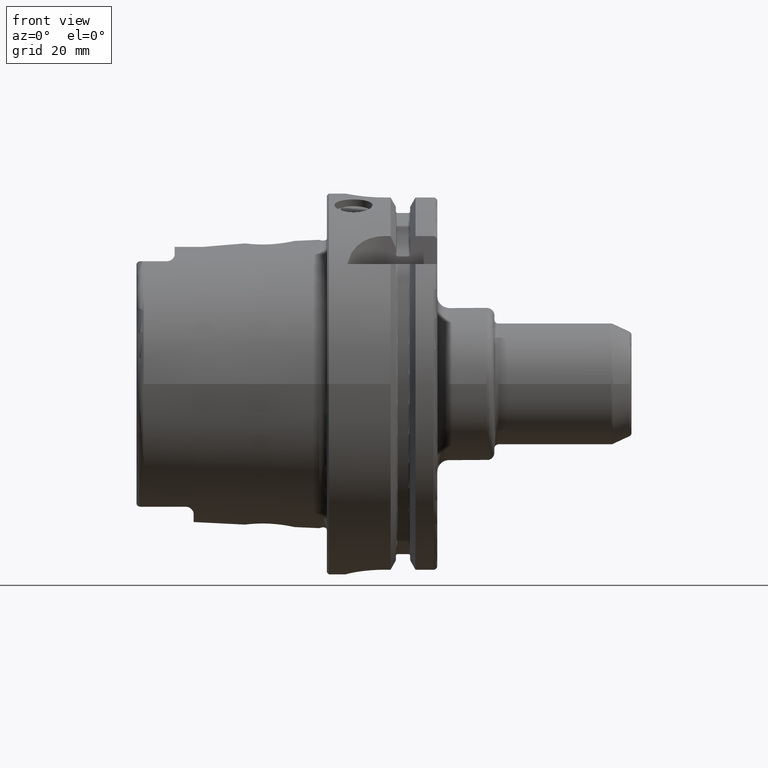
[diagram: clean part render]
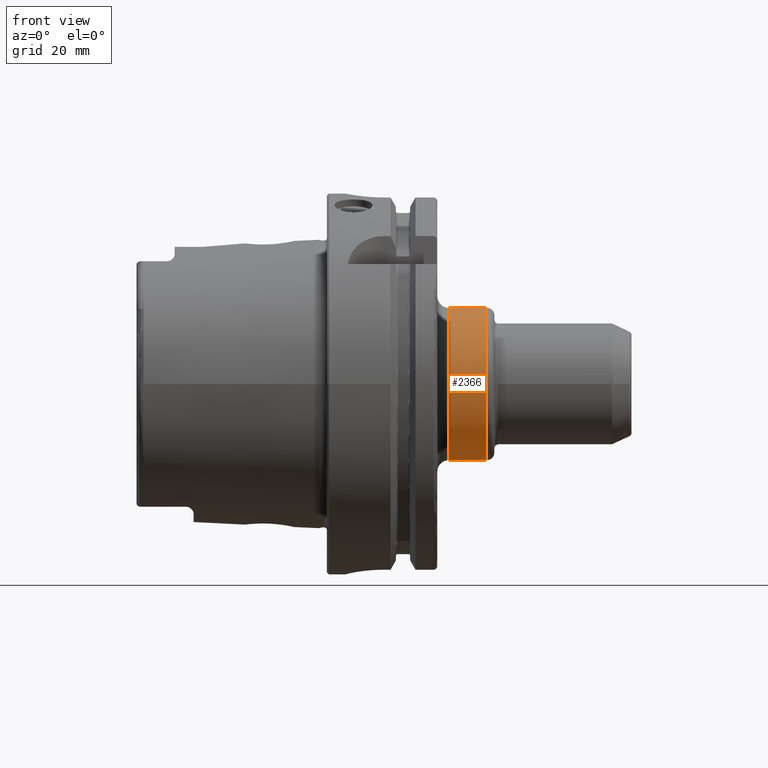
[diagram: same view with one face highlighted and labeled with its STEP entity id]
A machine part, front view. The second image highlights one B-rep face of the part: STEP entity #2366.
In plain terms, the highlighted cylindrical surface (bore or boss wall) has radius 20 mm, axis along (1, 0, 0).
Its self-contained STEP definition (entity closure, byte-faithful):
#135=CIRCLE('',#2562,20.);
#136=CIRCLE('',#2563,20.);
#137=CIRCLE('',#2565,20.);
#138=CIRCLE('',#2566,20.);
#323=FACE_OUTER_BOUND('',#469,.T.);
#469=EDGE_LOOP('',(#1690,#1691,#1692,#1693,#1694,#1695));
#688=LINE('',#3927,#810);
#810=VECTOR('',#2950,20.);
#973=VERTEX_POINT('',#3920);
#974=VERTEX_POINT('',#3922);
#975=VERTEX_POINT('',#3926);
#976=VERTEX_POINT('',#3928);
#1245=EDGE_CURVE('',#973,#974,#135,.T.);
#1246=EDGE_CURVE('',#974,#973,#136,.T.);
#1247=EDGE_CURVE('',#974,#975,#688,.T.);
#1248=EDGE_CURVE('',#976,#975,#137,.T.);
#1249=EDGE_CURVE('',#975,#976,#138,.T.);
#1690=ORIENTED_EDGE('',*,*,#1246,.F.);
#1691=ORIENTED_EDGE('',*,*,#1247,.T.);
#1692=ORIENTED_EDGE('',*,*,#1248,.F.);
#1693=ORIENTED_EDGE('',*,*,#1249,.F.);
#1694=ORIENTED_EDGE('',*,*,#1247,.F.);
#1695=ORIENTED_EDGE('',*,*,#1245,.F.);
#2307=CYLINDRICAL_SURFACE('',#2564,20.);
#2366=ADVANCED_FACE('',(#323),#2307,.T.);
#2562=AXIS2_PLACEMENT_3D('',#3923,#2944,#2945);
#2563=AXIS2_PLACEMENT_3D('',#3924,#2946,#2947);
#2564=AXIS2_PLACEMENT_3D('',#3925,#2948,#2949);
#2565=AXIS2_PLACEMENT_3D('',#3929,#2951,#2952);
#2566=AXIS2_PLACEMENT_3D('',#3930,#2953,#2954);
#2944=DIRECTION('center_axis',(1.,0.,0.));
#2945=DIRECTION('ref_axis',(0.,-1.,1.83697019872103E-16));
#2946=DIRECTION('center_axis',(1.,0.,0.));
#2947=DIRECTION('ref_axis',(0.,-1.,1.83697019872103E-16));
#2948=DIRECTION('center_axis',(1.,0.,0.));
#2949=DIRECTION('ref_axis',(0.,1.,0.));
#2950=DIRECTION('',(-1.,0.,0.));
#2951=DIRECTION('center_axis',(-1.,0.,0.));
#2952=DIRECTION('ref_axis',(0.,-1.,-1.22464679914735E-16));
#2953=DIRECTION('center_axis',(-1.,0.,0.));
#2954=DIRECTION('ref_axis',(0.,-1.,-1.22464679914735E-16));
#3920=CARTESIAN_POINT('',(42.,-2.44929359829471E-15,20.));
#3922=CARTESIAN_POINT('',(42.,-20.,-2.44929359829471E-15));
#3923=CARTESIAN_POINT('Origin',(42.,0.,0.));
#3924=CARTESIAN_POINT('Origin',(42.,0.,0.));
#3925=CARTESIAN_POINT('Origin',(36.5,0.,0.));
#3926=CARTESIAN_POINT('',(32.,-20.,-2.44929359829471E-15));
#3927=CARTESIAN_POINT('',(36.5,-20.,-2.44929359829471E-15));
#3928=CARTESIAN_POINT('',(32.,-2.44929359829471E-15,-20.));
#3929=CARTESIAN_POINT('Origin',(32.,0.,0.));
#3930=CARTESIAN_POINT('Origin',(32.,0.,0.));